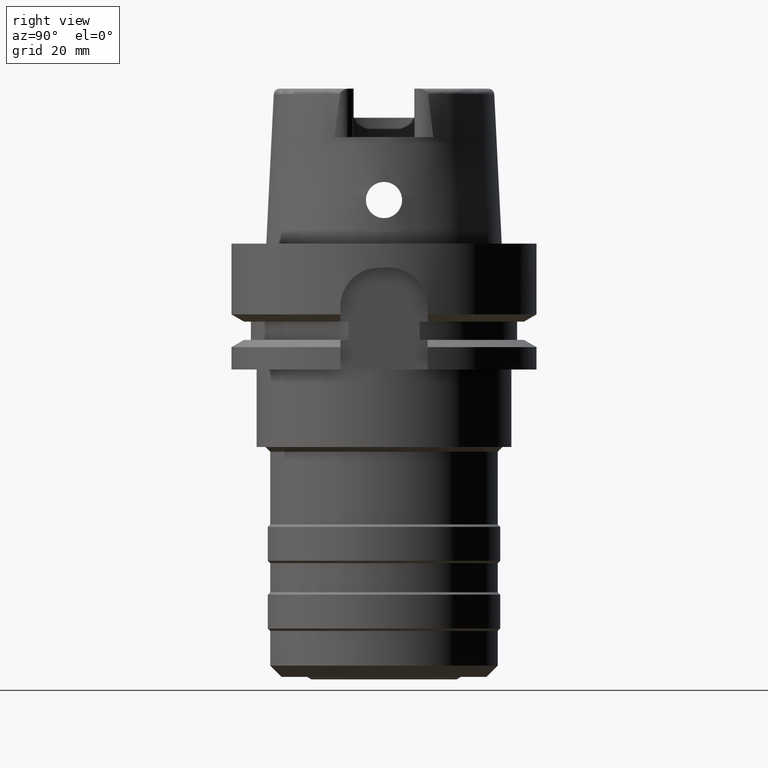
[diagram: clean part render]
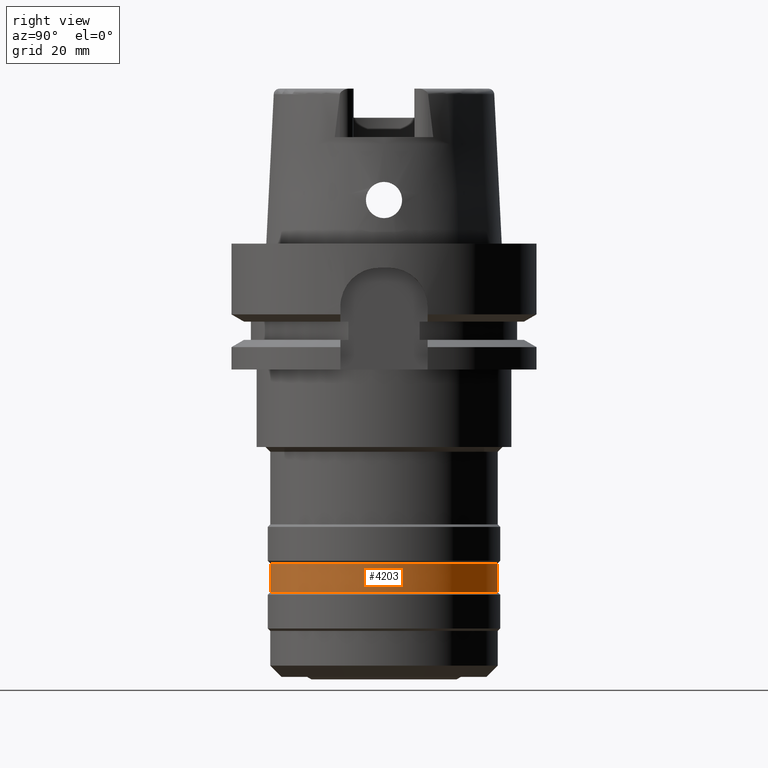
[diagram: same view with one face highlighted and labeled with its STEP entity id]
A machine part, right view. The second image highlights one B-rep face of the part: STEP entity #4203.
In plain terms, the highlighted cylindrical surface (partial cylindrical patch) has radius 23.5 mm, axis along (0, 0, -1).
Its self-contained STEP definition (entity closure, byte-faithful):
#1812=CARTESIAN_POINT('',(0.E0,0.E0,-6.6E1));
#1813=DIRECTION('',(0.E0,0.E0,-1.E0));
#1814=DIRECTION('',(0.E0,1.E0,0.E0));
#1815=AXIS2_PLACEMENT_3D('',#1812,#1813,#1814);
#1828=DIRECTION('',(0.E0,0.E0,-1.E0));
#1829=VECTOR('',#1828,6.E0);
#1830=CARTESIAN_POINT('',(0.E0,2.35E1,-6.6E1));
#1831=LINE('',#1830,#1829);
#1835=DIRECTION('',(0.E0,0.E0,-1.E0));
#1836=VECTOR('',#1835,6.E0);
#1837=CARTESIAN_POINT('',(0.E0,-2.35E1,-6.6E1));
#1838=LINE('',#1837,#1836);
#1880=CARTESIAN_POINT('',(0.E0,0.E0,-7.2E1));
#1881=DIRECTION('',(0.E0,0.E0,1.E0));
#1882=DIRECTION('',(0.E0,-1.E0,0.E0));
#1883=AXIS2_PLACEMENT_3D('',#1880,#1881,#1882);
#2757=CARTESIAN_POINT('',(0.E0,2.35E1,-6.6E1));
#2758=VERTEX_POINT('',#2757);
#2759=CARTESIAN_POINT('',(0.E0,-2.35E1,-6.6E1));
#2760=VERTEX_POINT('',#2759);
#2761=CARTESIAN_POINT('',(0.E0,2.35E1,-7.2E1));
#2762=VERTEX_POINT('',#2761);
#2763=CARTESIAN_POINT('',(0.E0,-2.35E1,-7.2E1));
#2764=VERTEX_POINT('',#2763);
#4189=CARTESIAN_POINT('',(0.E0,1.691237229622E-14,3.81E1));
#4190=DIRECTION('',(0.E0,0.E0,-1.E0));
#4191=DIRECTION('',(0.E0,-1.E0,0.E0));
#4192=AXIS2_PLACEMENT_3D('',#4189,#4190,#4191);
#4193=CYLINDRICAL_SURFACE('',#4192,2.35E1);
#4195=ORIENTED_EDGE('',*,*,#4194,.T.);
#4197=ORIENTED_EDGE('',*,*,#4196,.F.);
#4199=ORIENTED_EDGE('',*,*,#4198,.F.);
#4200=ORIENTED_EDGE('',*,*,#4182,.F.);
#4201=EDGE_LOOP('',(#4195,#4197,#4199,#4200));
#4202=FACE_OUTER_BOUND('',#4201,.F.);
#1816=CIRCLE('',#1815,2.35E1);
#1884=CIRCLE('',#1883,2.35E1);
#4182=EDGE_CURVE('',#2758,#2760,#1816,.T.);
#4194=EDGE_CURVE('',#2758,#2762,#1831,.T.);
#4196=EDGE_CURVE('',#2764,#2762,#1884,.T.);
#4198=EDGE_CURVE('',#2760,#2764,#1838,.T.);
#4203=ADVANCED_FACE('',(#4202),#4193,.T.);